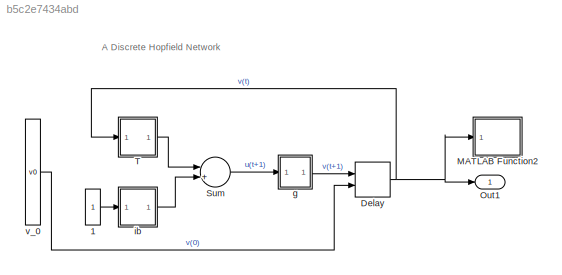
MODEL slx_b5c2e7434abd
KIND model
CONFIG AbsTol = auto
CONFIG EnableMultiTasking = on
CONFIG FixedStep = 1
CONFIG MaxStep = auto
CONFIG MinStep = auto
CONFIG RelTol = 1e-3
CONFIG SampleTimeConstraint = Unconstrained
CONFIG Solver = FixedStepAuto
CONFIG SolverName = FixedStepAuto
CONFIG StartTime = 0.0
CONFIG StopTime = 10.0
BLOCK [Constant] 1
BLOCK [Delay] Delay
  DelayLength = 1
  InitialConditionSource = Input port
  InputPortMap = u0,p4
  Ports = [2, 1]
  SampleTime = 1
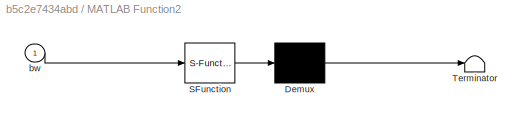
BLOCK [SubSystem] MATLAB Function2
  ErrorFcn = Stateflow.Translate.translate
  PermitHierarchicalResolution = ExplicitOnly
  Ports = [1]
  RequestExecContextInheritance = off
  SFBlockType = MATLAB Function
  TreatAsAtomicUnit = on
  Variant = off
BLOCK [Demux] MATLAB Function2/ Demux 
  Outputs = 1
  Ports = [1, 1]
BLOCK [S-Function] MATLAB Function2/ SFunction 
  EnableBusSupport = on
  FunctionName = sf_sfun
  PortCounts = [1 1]
  Ports = [1, 1]
  SFcnIsStateOwnerBlock = off
  SFunctionDeploymentMode = off
  Tag = Stateflow S-Function discreteHopfieldNetwork 2
BLOCK [Terminator] MATLAB Function2/ Terminator 
BLOCK [Inport] MATLAB Function2/bw
  IconDisplay = Port number
BLOCK [Outport] Out1
  IconDisplay = Port number
BLOCK [Sum] Sum
  IconShape = round
  InputSameDT = off
  Inputs = |++|
  OutDataTypeStr = Inherit: Inherit via internal rule
  Ports = [2, 1]
  SaturateOnIntegerOverflow = off
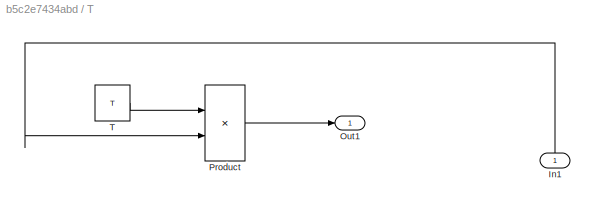
BLOCK [SubSystem] T
  Ports = [1, 1]
  RequestExecContextInheritance = off
  Variant = off
BLOCK [Inport] T/In1
  IconDisplay = Port number
BLOCK [Outport] T/Out1
  IconDisplay = Port number
BLOCK [Product] T/Product
  InputSameDT = off
  Multiplication = Matrix(*)
  OutDataTypeStr = Inherit: Inherit via internal rule
  Ports = [2, 1]
  RndMeth = Floor
  SaturateOnIntegerOverflow = off
BLOCK [Constant] T/T
  Value = T
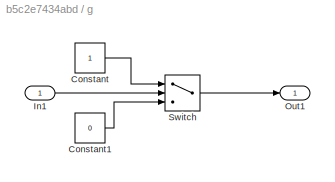
BLOCK [SubSystem] g
  Ports = [1, 1]
  RequestExecContextInheritance = off
  Variant = off
BLOCK [Constant] g/Constant
BLOCK [Constant] g/Constant1
  Value = 0
BLOCK [Inport] g/In1
  IconDisplay = Port number
BLOCK [Outport] g/Out1
  IconDisplay = Port number
BLOCK [Switch] g/Switch
  Criteria = u2 > Threshold
  InputSameDT = off
  SaturateOnIntegerOverflow = off
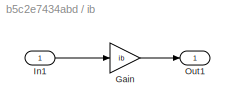
BLOCK [SubSystem] ib
  Ports = [1, 1]
  RequestExecContextInheritance = off
  Variant = off
BLOCK [Gain] ib/Gain
  Gain = ib
  OutDataTypeStr = Inherit: Inherit via internal rule
  ParamDataTypeStr = Inherit: Inherit via internal rule
  SaturateOnIntegerOverflow = off
BLOCK [Inport] ib/In1
  IconDisplay = Port number
BLOCK [Outport] ib/Out1
  IconDisplay = Port number
BLOCK [Constant] v_0
  Value = v0
ANNOTATION (root): A Discrete Hopfield Network
LINE 1:1 -> ib:1
NET Delay:1 -> MATLAB Function2:1, Out1:1, T:1
LINE Sum:1 -> g:1
LINE T/In1:1 -> T/Product:2
LINE T/Product:1 -> T/Out1:1
LINE T/T:1 -> T/Product:1
LINE T:1 -> Sum:1
LINE g/Constant1:1 -> g/Switch:3
LINE g/Constant:1 -> g/Switch:1
LINE g/In1:1 -> g/Switch:2
LINE g/Switch:1 -> g/Out1:1
LINE g:1 -> Delay:1
LINE ib/Gain:1 -> ib/Out1:1
LINE ib/In1:1 -> ib/Gain:1
LINE ib:1 -> Sum:2
LINE v_0:1 -> Delay:2
note: NET lines group one-source signal fan-out (src -> all destinations, sorted); 1:1 wires keep LINE
CHART MATLAB Function2 states=1 transitions=1
  STATE_LABEL 'eML_blk_kernel()'
  STATE_LABEL "SCRIPT:\nfunction plot(bw)\ncoder.extrinsic('imshow')\nbw = reshape(bw, 6, 5);\n\nxh = [0.5000; 5.5000; 5.5000; 0.5000; 0.5000; 5.5000; 5.5000; 0.5000; 0.5000; 5.5000; 5.5000; 0.5000; 0.5000; 5.5000];\nyh = [0.5000; 0.5000; 1.5000; 1.5000; 2.5000; 2.5000; 3.5000; 3.5000; 4.5000; 4.5000; 5.5000; 5.5000; 6.5000; 6.5000];\n\nxv = [0.5000; 0.5000; 1.5000; 1.5000; 2.5000; 2.5000; 3.5000; 3.5000; 4.5000; 4.5000...<+419ch>"
